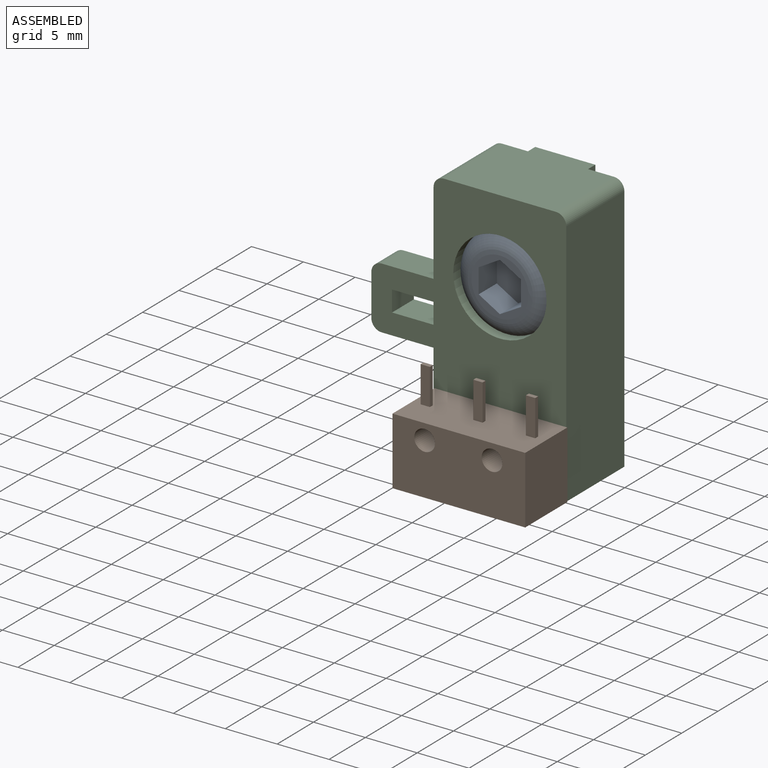
[diagram: assembled view]
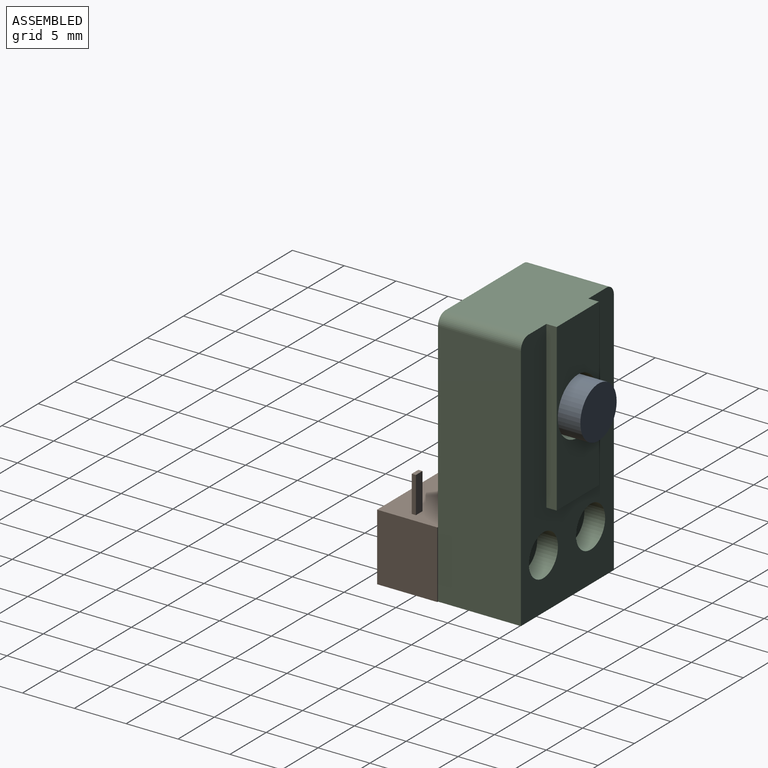
[diagram: assembled view, second angle]
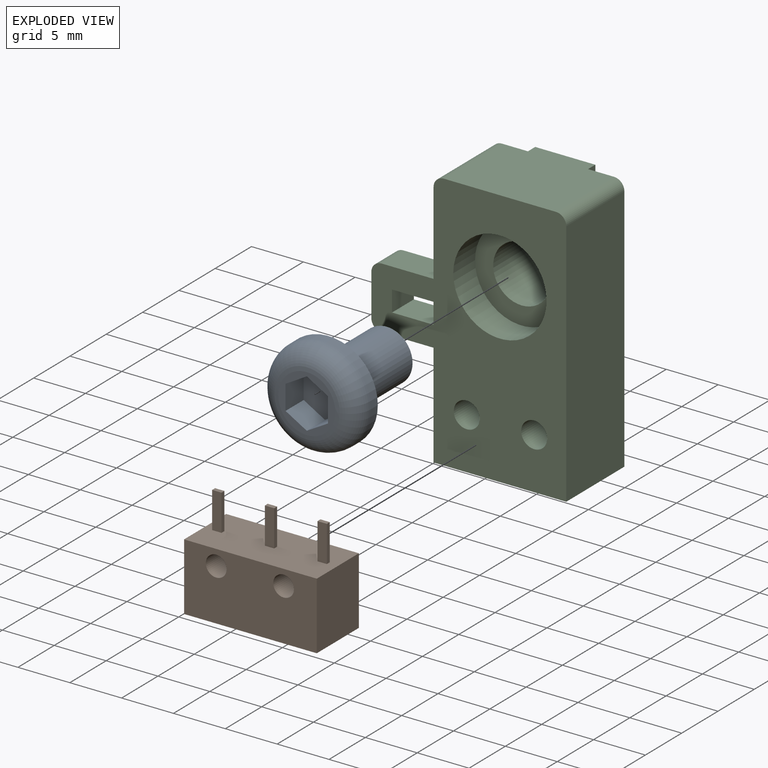
[diagram: exploded view]
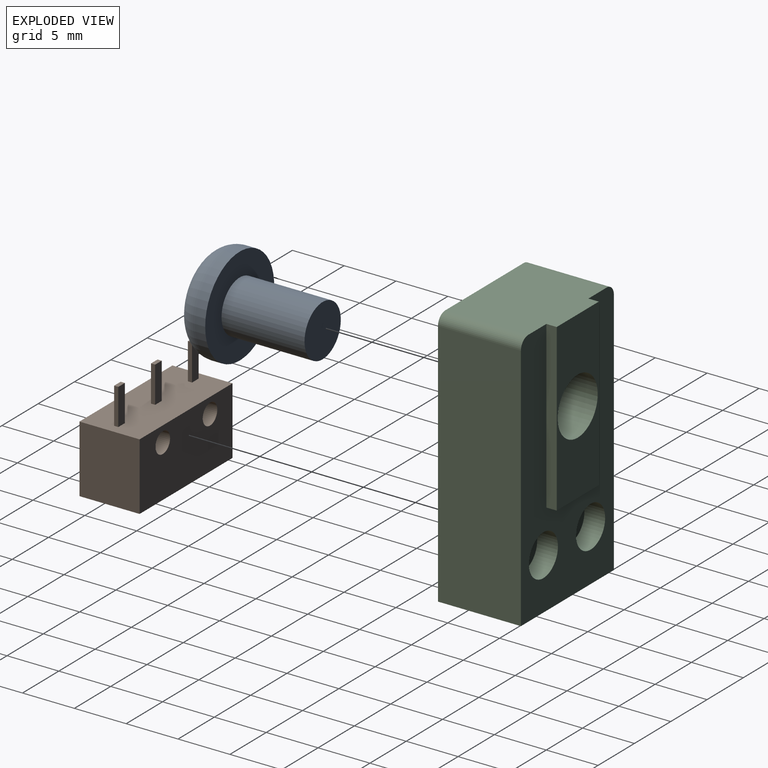
[diagram: exploded view, second angle]
ASSEMBLY  parts=3 mates=2
PART A: 13 faces, bbox 10.3x10.3x11 mm
  f0: plane 5.5x5.5mm, normal (0,0,1), area 9.2mm2, adj f3,f6,f7,f8,f9,f10,f11
  f1: cylinder r=4.75mm len=9.5mm, axis (0,0,-1), area 29.8mm2, adj f2,f3
  f2: plane 9.5x9.5mm, normal (0,0,-1), area 51.2mm2, adj f1,f4
  f3: torus R=2.75mm, axis (0,0,1), area 79.4mm2, adj f0,f1
  f4: cylinder r=2.5mm len=8mm, axis (0,0,1), area 125.7mm2, adj f2,f5
  f5: plane 5x5mm, normal (0,0,-1), area 19.6mm2, adj f4
  f6: plane 2.5x2.05mm, normal (-0.5,-0.87,0), area 5.9mm2, adj f0,f7,f11,f12
  f7: plane 2.5x2.05mm, normal (0.5,-0.87,0), area 5.9mm2, adj f0,f6,f8,f12
  f8: plane 2.5x2.36mm, normal (1,0,0), area 5.9mm2, adj f0,f7,f9,f12
  f9: plane 2.5x2.05mm, normal (0.5,0.87,0), area 5.9mm2, adj f0,f8,f10,f12
  f10: plane 2.5x2.05mm, normal (-0.5,0.87,0), area 5.9mm2, adj f0,f9,f11,f12
  f11: plane 2.5x2.36mm, normal (-1,0,0), area 5.9mm2, adj f0,f6,f10,f12
  f12: plane 4.73x4.1mm, normal (0,0,1), area 14.5mm2, adj f6,f7,f8,f9,f10,f11
PART B: 30 faces, bbox 12.8x10.5x5.8 mm
  f0: plane 12.8x5.8mm, normal (0,-1,0), area 73.2mm2, adj f1,f2,f6,f7,f8,f10,f11,f12
  f1: plane 6.5x5.8mm, normal (-1,0,0), area 37.7mm2, adj f0,f5,f6,f7
  f2: plane 6.5x5.8mm, normal (1,0,0), area 37.7mm2, adj f0,f5,f6,f7
  f3: cylinder r=1mm len=5.8mm, axis (0,0,-1), area 36.4mm2, adj f6,f7
  f4: cylinder r=1mm len=5.8mm, axis (0,0,-1), area 36.4mm2, adj f6,f7
  f5: plane 12.8x5.8mm, normal (0,1,0), area 70.8mm2, adj f1,f2,f6,f7,f23,f24,f25,f26
  f6: plane 12.8x6.5mm, normal (0,0,1), area 76.9mm2, adj f0,f1,f2,f3,f4,f5
  f7: plane 12.8x6.5mm, normal (0,0,-1), area 76.9mm2, adj f0,f1,f2,f3,f4,f5
  f8: plane 3.5x0.4mm, normal (-1,0,0), area 1.4mm2, adj f0,f9,f11,f12
  f9: plane 0.9x0.4mm, normal (0,-1,0), area 0.4mm2, adj f8,f10,f11,f12
  f10: plane 3.5x0.4mm, normal (1,0,0), area 1.4mm2, adj f0,f9,f11,f12
  f11: plane 3.5x0.9mm, normal (0,0,1), area 3.2mm2, adj f0,f8,f9,f10
  f12: plane 3.5x0.9mm, normal (0,0,-1), area 3.2mm2, adj f0,f8,f9,f10
  f13: plane 3.5x0.4mm, normal (-1,0,0), area 1.4mm2, adj f0,f14,f16,f17
  f14: plane 0.9x0.4mm, normal (0,-1,0), area 0.4mm2, adj f13,f15,f16,f17
  f15: plane 3.5x0.4mm, normal (1,0,0), area 1.4mm2, adj f0,f14,f16,f17
  f16: plane 3.5x0.9mm, normal (0,0,1), area 3.1mm2, adj f0,f13,f14,f15
  f17: plane 3.5x0.9mm, normal (0,0,-1), area 3.1mm2, adj f0,f13,f14,f15
  f18: plane 3.5x0.4mm, normal (-1,0,0), area 1.4mm2, adj f0,f19,f21,f22
  f19: plane 0.9x0.4mm, normal (0,-1,0), area 0.4mm2, adj f18,f20,f21,f22
  f20: plane 3.5x0.4mm, normal (1,0,0), area 1.4mm2, adj f0,f19,f21,f22
  f21: plane 3.5x0.9mm, normal (0,0,1), area 3.2mm2, adj f0,f18,f19,f20
  f22: plane 3.5x0.9mm, normal (0,0,-1), area 3.2mm2, adj f0,f18,f19,f20
  f23: plane 2.9x0.1mm, normal (1,0,0), area 0.3mm2, adj f5,f24,f26,f29
  f24: plane 1.2x0.5mm, normal (0,0,-1), area 0.5mm2, adj f5,f23,f25,f27,f28,f29
  f25: plane 2.9x0.1mm, normal (-1,0,0), area 0.3mm2, adj f5,f24,f26,f28
  f26: plane 1.2x0.5mm, normal (0,0,1), area 0.5mm2, adj f5,f23,f25,f27,f28,f29
  f27: plane 2.9x0.4mm, normal (0,1,0), area 1.2mm2, adj f24,f26,f28,f29
  f28: cylinder r=0.4mm len=2.9mm, axis (0,0,-1), area 1.8mm2, adj f24,f25,f26,f27
  f29: cylinder r=0.4mm len=2.9mm, axis (0,0,1), area 1.8mm2, adj f23,f24,f26,f27
PART C: 32 faces, bbox 18.8x9x25 mm
  f0: cylinder r=2.75mm len=6mm, axis (0,1,0), area 103.7mm2, adj f16,f30
  f1: plane 24x8mm, normal (1,0,0), area 176mm2, adj f2,f6,f8,f17,f19,f22,f23,f24
  f2: plane 25x12.8mm, normal (0,-1,0), area 201.6mm2, adj f1,f5,f6,f7,f9,f11,f13,f14
  f3: cylinder r=1.25mm len=6mm, axis (0,1,0), area 47.1mm2, adj f8,f12
  f4: cylinder r=1.25mm len=6mm, axis (0,1,0), area 47.1mm2, adj f8,f10
  f5: plane 24x8mm, normal (-1,0,0), area 192mm2, adj f2,f6,f8,f29
  f6: plane 12.8x8mm, normal (0,0,-1), area 102.4mm2, adj f1,f2,f5,f8
  f7: plane 10.8x9mm, normal (0,0,1), area 92.2mm2, adj f2,f8,f13,f15,f16,f28,f29
  f8: plane 25x18.8mm, normal (0,1,0), area 273.7mm2, adj f1,f3,f4,f5,f6,f7,f17,f19
  f9: cylinder r=2mm len=4mm, axis (0,-1,0), area 25.1mm2, adj f2,f10
  f10: plane 4x4mm, normal (0,-1,0), area 7.7mm2, adj f4,f9
  f11: cylinder r=2mm len=4mm, axis (0,-1,0), area 25.1mm2, adj f2,f12
  f12: plane 4x4mm, normal (0,-1,0), area 7.7mm2, adj f3,f11
  f13: plane 16x1mm, normal (-1,0,0), area 16mm2, adj f2,f7,f14,f16
  f14: plane 5.8x1mm, normal (0,0,-1), area 5.8mm2, adj f2,f13,f15,f16
  f15: plane 16x1mm, normal (1,0,0), area 16mm2, adj f2,f7,f14,f16
  f16: plane 16x5.8mm, normal (0,-1,0), area 69mm2, adj f0,f7,f13,f14,f15
  f17: plane 5x4mm, normal (0,0,1), area 15.2mm2, adj f1,f8,f18,f24,f26
  f18: plane 6x5mm, normal (0,-1,0), area 23.6mm2, adj f17,f19,f20,f21,f22,f23,f24,f25
  f19: plane 5x4mm, normal (0,0,-1), area 15.2mm2, adj f1,f8,f18,f25,f27
  f20: plane 4x3mm, normal (1,0,0), area 12mm2, adj f8,f18,f26,f27
  f21: plane 3x2mm, normal (-1,0,0), area 6mm2, adj f8,f18,f22,f23
  f22: plane 4x4mm, normal (0,0,1), area 12.2mm2, adj f1,f8,f18,f21,f25
  f23: plane 4x4mm, normal (0,0,-1), area 12.2mm2, adj f1,f8,f18,f21,f24
  f24: cylinder r=1mm len=2mm, axis (0,0,-1), area 3.1mm2, adj f1,f17,f18,f23
  f25: cylinder r=1mm len=2mm, axis (0,0,-1), area 3.1mm2, adj f1,f18,f19,f22
  f26: cylinder r=1mm len=3mm, axis (0,1,0), area 4.7mm2, adj f8,f17,f18,f20
  f27: cylinder r=1mm len=3mm, axis (0,-1,0), area 4.7mm2, adj f8,f18,f19,f20
  f28: cylinder r=1mm len=8mm, axis (0,1,0), area 12.6mm2, adj f1,f2,f7,f8
  f29: cylinder r=1mm len=8mm, axis (0,-1,0), area 12.6mm2, adj f2,f5,f7,f8
  f30: plane 9x9mm, normal (0,1,0), area 39.9mm2, adj f0,f31
  f31: cylinder r=4.5mm len=9mm, axis (0,1,0), area 84.8mm2, adj f8,f30
PLACE A rot(axis=(1,0,0),90deg) t=(-32.39,-8.63,26.46)mm
PLACE B rot(axis=(-1,0,0),90deg) t=(-32.34,-17.43,12.71)mm
PLACE C rot(axis=(0,0,1),180deg) t=(-32.39,-11.63,12.71)mm
MATE fastened C.f4 <-> B.f3  axis (0,-1,0) through (-35.59,-11.63,14.46)mm
MATE fastened C.f0 <-> A.f1  axis (0,-1,0) through (-32.39,-8.63,26.46)mm
